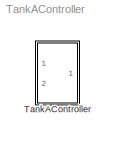
MODEL TankAController
KIND model
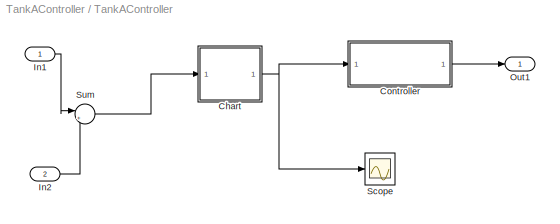
BLOCK [SubSystem] TankAController
  FunctionWithSeparateData = off
  MaskHideContents = off
  MinAlgLoopOccurrences = off
  Opaque = off
  Ports = [2, 1]
  PropExecContextOutsideSubsystem = off
  RTWSystemCode = Auto
  RequestExecContextInheritance = off
  SID = 1
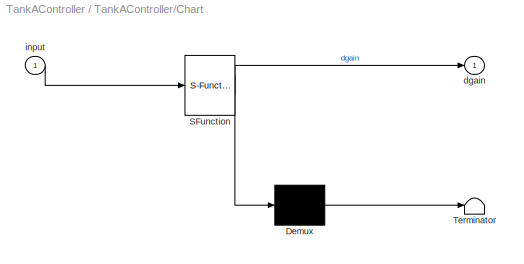
BLOCK [SubSystem] TankAController/Chart
  ErrorFcn = Stateflow.Translate.translate
  FunctionWithSeparateData = off
  MaskHideContents = off
  MinAlgLoopOccurrences = off
  Opaque = off
  PermitHierarchicalResolution = ExplicitOnly
  Ports = [1, 1]
  PropExecContextOutsideSubsystem = off
  RTWSystemCode = Auto
  RequestExecContextInheritance = off
  SFBlockType = Chart
  SID = 4
  TreatAsAtomicUnit = on
BLOCK [Demux] TankAController/Chart/ Demux 
  Outputs = 1
  Ports = [1, 1]
  SID = 4::48
BLOCK [S-Function] TankAController/Chart/ SFunction 
  EnableBusSupport = on
  FunctionName = sf_sfun
  PortCounts = [1 2]
  Ports = [1, 2]
  SID = 4::47
  Tag = Stateflow S-Function TankAController 3
BLOCK [Terminator] TankAController/Chart/ Terminator 
  SID = 4::49
BLOCK [Outport] TankAController/Chart/dgain
  IconDisplay = Port number
  SID = 4::46
BLOCK [Inport] TankAController/Chart/input
  IconDisplay = Port number
  SID = 4::45
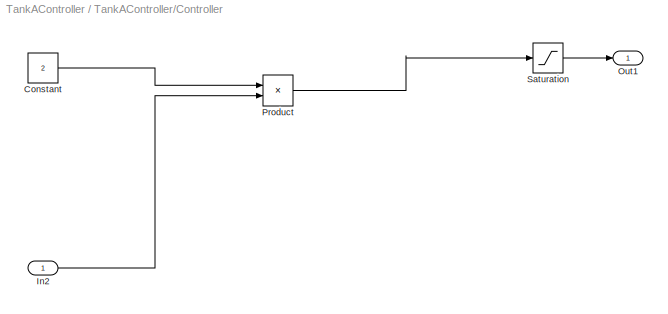
BLOCK [SubSystem] TankAController/Controller
  FunctionWithSeparateData = off
  MaskHideContents = off
  MinAlgLoopOccurrences = off
  Opaque = off
  Ports = [1, 1]
  PropExecContextOutsideSubsystem = off
  RTWSystemCode = Auto
  RequestExecContextInheritance = off
  SID = 5
BLOCK [Constant] TankAController/Controller/Constant
  SID = 7
  Value = 2
BLOCK [Inport] TankAController/Controller/In2
  IconDisplay = Port number
  SID = 6
BLOCK [Outport] TankAController/Controller/Out1
  IconDisplay = Port number
  SID = 10
BLOCK [Product] TankAController/Controller/Product
  InputSameDT = off
  OutDataTypeStr = Inherit: Inherit via internal rule
  Ports = [2, 1]
  RndMeth = Floor
  SID = 8
  SaturateOnIntegerOverflow = off
BLOCK [Saturate] TankAController/Controller/Saturation
  InputPortMap = u0
  LowerLimit = 0
  Ports = [1, 1]
  SID = 9
  UpperLimit = 10
BLOCK [Inport] TankAController/In1
  IconDisplay = Port number
  OutDataTypeStr = double
  SID = 2
BLOCK [Inport] TankAController/In2
  IconDisplay = Port number
  OutDataTypeStr = double
  Port = 2
  SID = 3
BLOCK [Outport] TankAController/Out1
  IconDisplay = Port number
  OutDataTypeStr = double
  SID = 13
BLOCK [Scope] TankAController/Scope
  DataFormat = StructureWithTime
  Floating = off
  NumInputPorts = 1
  Ports = [1]
  SID = 11
  SampleTime = 0
  SaveName = ScopeData2
  ShowLegends = off
BLOCK [Sum] TankAController/Sum
  IconShape = round
  InputSameDT = off
  Inputs = |+-
  OutDataTypeStr = Inherit: Inherit via internal rule
  Ports = [2, 1]
  SID = 12
  SaturateOnIntegerOverflow = off
LINE TankAController/Chart/ Demux :1 -> TankAController/Chart/ Terminator :1
LINE TankAController/Chart/ SFunction :1 -> TankAController/Chart/ Demux :1
LINE TankAController/Chart/ SFunction :2 -> TankAController/Chart/dgain:1
LINE TankAController/Chart/input:1 -> TankAController/Chart/ SFunction :1
NET TankAController/Chart:1 -> TankAController/Controller:1, TankAController/Scope:1
LINE TankAController/Controller/Constant:1 -> TankAController/Controller/Product:1
LINE TankAController/Controller/In2:1 -> TankAController/Controller/Product:2
LINE TankAController/Controller/Product:1 -> TankAController/Controller/Saturation:1
LINE TankAController/Controller/Saturation:1 -> TankAController/Controller/Out1:1
LINE TankAController/Controller:1 -> TankAController/Out1:1
LINE TankAController/In1:1 -> TankAController/Sum:1
LINE TankAController/In2:1 -> TankAController/Sum:2
LINE TankAController/Sum:1 -> TankAController/Chart:1
note: NET lines group one-source signal fan-out (src -> all destinations, sorted); 1:1 wires keep LINE
CHART TankAController/Chart states=3 transitions=5
  STATE_LABEL 'High\\nentry: dgain = 1'
  STATE_LABEL 'Medium\\nentry: dgain = 0.5'
  STATE_LABEL 'Off\\nentry: dgain = 0'
